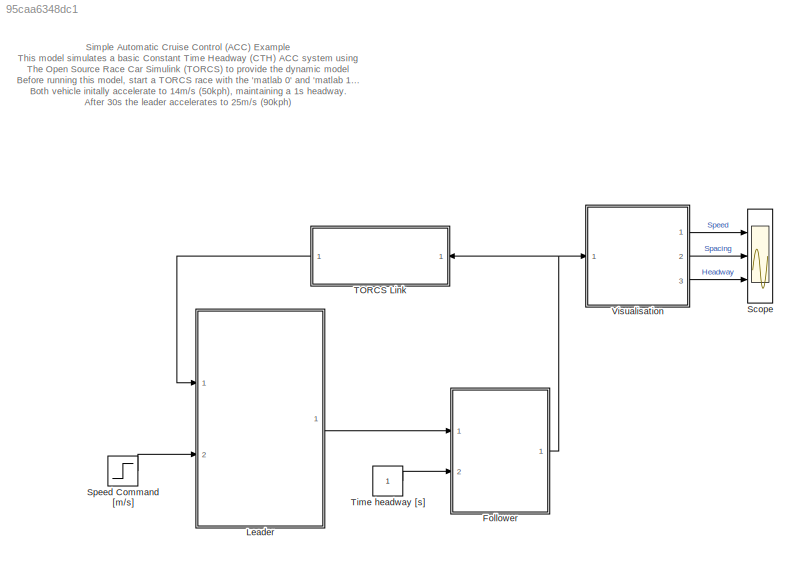
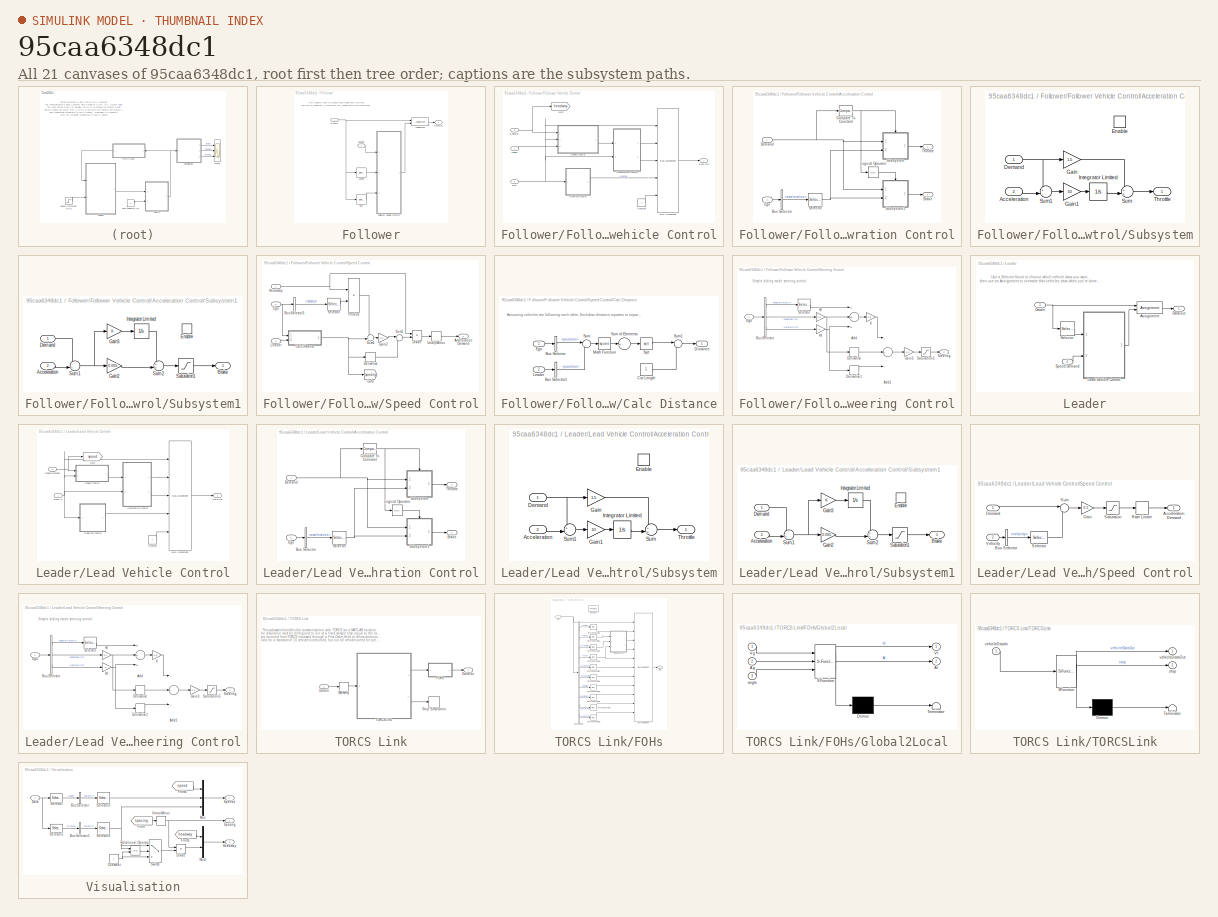
[diagram: thumbnail index - all 21 canvases of the model, root first then tree order]
MODEL slx_95caa6348dc1
KIND model
BLOCK [SubSystem] Follower
  CopyFcn = veh = str2num(get_param(gcb, 'vehicle'));\nveh = veh + 1;\nset_param(gcb,'vehicle',num2str(veh));
  Ports = [2, 1]
  RequestExecContextInheritance = off
BLOCK [Assignment] Follower/Assignment
  DiagnosticForDimensions = Warning
  Indices = 2
  Ports = [2, 1]
BLOCK [Inport] Follower/DataIn
  IconDisplay = Port number
BLOCK [Outport] Follower/DataOut
  IconDisplay = Port number
BLOCK [Selector] Follower/Ego
  Indices = 2
  InputPortWidth = 10
  Ports = [1, 1]
BLOCK [SubSystem] Follower/Follower Vehicle Control
  Ports = [3, 1]
  RequestExecContextInheritance = off
BLOCK [SubSystem] Follower/Follower Vehicle Control/Acceleration Control
  Ports = [2, 2]
  RequestExecContextInheritance = off
BLOCK [Outport] Follower/Follower Vehicle Control/Acceleration Control/Brake
  IconDisplay = Port number
  Port = 2
BLOCK [BusSelector] Follower/Follower Vehicle Control/Acceleration Control/Bus Selector
  OutputSignals = data.acceleration
  Ports = [1, 1]
BLOCK [Reference] Follower/Follower Vehicle Control/Acceleration Control/Compare To Constant  REF=simulink/Logic and Bit
Operations/Compare
To Constant
  OutDataTypeStr = boolean
  Ports = [1, 1]
  SourceBlock = simulink/Logic and Bit\nOperations/Compare\nTo Constant
  SourceType = Compare To Constant
  ZeroCross = on
  const = -0.1
  relop = >=
BLOCK [Inport] Follower/Follower Vehicle Control/Acceleration Control/Demand
  IconDisplay = Port number
BLOCK [Inport] Follower/Follower Vehicle Control/Acceleration Control/Ego
  IconDisplay = Port number
  Port = 2
BLOCK [Logic] Follower/Follower Vehicle Control/Acceleration Control/Logical Operator
  AllPortsSameDT = off
  Operator = NOT
  OutDataTypeStr = boolean
  Ports = [1, 1]
BLOCK [Selector] Follower/Follower Vehicle Control/Acceleration Control/Selector
  InputPortWidth = 3
  Ports = [1, 1]
BLOCK [SubSystem] Follower/Follower Vehicle Control/Acceleration Control/Subsystem
  Ports = [2, 1, 1]
  RequestExecContextInheritance = off
BLOCK [Inport] Follower/Follower Vehicle Control/Acceleration Control/Subsystem/Acceleration
  IconDisplay = Port number
  Port = 2
BLOCK [Inport] Follower/Follower Vehicle Control/Acceleration Control/Subsystem/Demand
  IconDisplay = Port number
BLOCK [EnablePort] Follower/Follower Vehicle Control/Acceleration Control/Subsystem/Enable
  Ports = []
  StatesWhenEnabling = reset
BLOCK [Gain] Follower/Follower Vehicle Control/Acceleration Control/Subsystem/Gain
  Gain = 1.5
  OutDataTypeStr = Inherit: Inherit via internal rule
  ParamDataTypeStr = Inherit: Inherit via internal rule
  SaturateOnIntegerOverflow = off
BLOCK [Gain] Follower/Follower Vehicle Control/Acceleration Control/Subsystem/Gain1
  Gain = 10
  OutDataTypeStr = Inherit: Inherit via internal rule
  ParamDataTypeStr = Inherit: Inherit via internal rule
  SaturateOnIntegerOverflow = off
BLOCK [Integrator] Follower/Follower Vehicle Control/Acceleration Control/Subsystem/Integrator Limited
  LimitOutput = on
  LowerSaturationLimit = -1
  Ports = [1, 1]
  UpperSaturationLimit = 1
BLOCK [Sum] Follower/Follower Vehicle Control/Acceleration Control/Subsystem/Sum
  IconShape = round
  InputSameDT = off
  Inputs = ++|
  OutDataTypeStr = Inherit: Inherit via internal rule
  Ports = [2, 1]
  SaturateOnIntegerOverflow = off
BLOCK [Sum] Follower/Follower Vehicle Control/Acceleration Control/Subsystem/Sum1
  IconShape = round
  InputSameDT = off
  Inputs = +-|
  OutDataTypeStr = Inherit: Inherit via internal rule
  Ports = [2, 1]
  SaturateOnIntegerOverflow = off
BLOCK [Outport] Follower/Follower Vehicle Control/Acceleration Control/Subsystem/Throttle
  IconDisplay = Port number
  InitialOutput = 0
  OutputWhenDisabled = reset
BLOCK [SubSystem] Follower/Follower Vehicle Control/Acceleration Control/Subsystem1
  Ports = [2, 1, 1]
  RequestExecContextInheritance = off
BLOCK [Inport] Follower/Follower Vehicle Control/Acceleration Control/Subsystem1/Acceleration
  IconDisplay = Port number
  Port = 2
BLOCK [Outport] Follower/Follower Vehicle Control/Acceleration Control/Subsystem1/Brake
  IconDisplay = Port number
  InitialOutput = 0
  OutputWhenDisabled = reset
BLOCK [Inport] Follower/Follower Vehicle Control/Acceleration Control/Subsystem1/Demand
  IconDisplay = Port number
BLOCK [EnablePort] Follower/Follower Vehicle Control/Acceleration Control/Subsystem1/Enable
  Ports = []
  StatesWhenEnabling = reset
BLOCK [Gain] Follower/Follower Vehicle Control/Acceleration Control/Subsystem1/Gain2
  Gain = 0.005
  OutDataTypeStr = Inherit: Inherit via internal rule
  ParamDataTypeStr = Inherit: Inherit via internal rule
  SaturateOnIntegerOverflow = off
BLOCK [Gain] Follower/Follower Vehicle Control/Acceleration Control/Subsystem1/Gain3
  OutDataTypeStr = Inherit: Inherit via internal rule
  ParamDataTypeStr = Inherit: Inherit via internal rule
  SaturateOnIntegerOverflow = off
BLOCK [Integrator] Follower/Follower Vehicle Control/Acceleration Control/Subsystem1/Integrator Limited
  LimitOutput = on
  LowerSaturationLimit = -1
  Ports = [1, 1]
  UpperSaturationLimit = 1
BLOCK [Saturate] Follower/Follower Vehicle Control/Acceleration Control/Subsystem1/Saturation1
  InputPortMap = u0
  LowerLimit = 0
  Ports = [1, 1]
  UpperLimit = 1
BLOCK [Sum] Follower/Follower Vehicle Control/Acceleration Control/Subsystem1/Sum1
  IconShape = round
  InputSameDT = off
  Inputs = -+|
  OutDataTypeStr = Inherit: Inherit via internal rule
  Ports = [2, 1]
  SaturateOnIntegerOverflow = off
BLOCK [Sum] Follower/Follower Vehicle Control/Acceleration Control/Subsystem1/Sum2
  IconShape = round
  InputSameDT = off
  Inputs = ++|
  OutDataTypeStr = Inherit: Inherit via internal rule
  Ports = [2, 1]
  SaturateOnIntegerOverflow = off
BLOCK [Outport] Follower/Follower Vehicle Control/Acceleration Control/Throttle
  IconDisplay = Port number
BLOCK [BusAssignment] Follower/Follower Vehicle Control/Bus Assignment
  AssignedSignals = control.throttle,control.brake,control.steering,control.gear
  Ports = [5, 1]
BLOCK [Constant] Follower/Follower Vehicle Control/Constant
  OutDataTypeStr = int32
  Value = 4
BLOCK [Outport] Follower/Follower Vehicle Control/Data Out
  IconDisplay = Port number
BLOCK [Inport] Follower/Follower Vehicle Control/Ego
  IconDisplay = Port number
  Port = 3
BLOCK [Goto] Follower/Follower Vehicle Control/Goto
  GotoTag = headway
  TagVisibility = global
BLOCK [Inport] Follower/Follower Vehicle Control/Headway
  IconDisplay = Port number
BLOCK [Inport] Follower/Follower Vehicle Control/Leader
  IconDisplay = Port number
  Port = 2
BLOCK [SubSystem] Follower/Follower Vehicle Control/Speed Control
  Ports = [3, 1]
  RequestExecContextInheritance = off
BLOCK [Outport] Follower/Follower Vehicle Control/Speed Control/Acceleration Demand
  IconDisplay = Port number
BLOCK [BusSelector] Follower/Follower Vehicle Control/Speed Control/Bus Selector3
  OutputSignals = data.velocity
  Ports = [1, 1]
BLOCK [SubSystem] Follower/Follower Vehicle Control/Speed Control/Calc Distance
  Ports = [2, 1]
  RequestExecContextInheritance = off
BLOCK [BusSelector] Follower/Follower Vehicle Control/Speed Control/Calc Distance/Bus Selector
  OutputSignals = data.position
  Ports = [1, 1]
BLOCK [BusSelector] Follower/Follower Vehicle Control/Speed Control/Calc Distance/Bus Selector1
  OutputSignals = data.position
  Ports = [1, 1]
BLOCK [Constant] Follower/Follower Vehicle Control/Speed Control/Calc Distance/Car Length
  Value = 5
BLOCK [Outport] Follower/Follower Vehicle Control/Speed Control/Calc Distance/Distance
  IconDisplay = Port number
BLOCK [Inport] Follower/Follower Vehicle Control/Speed Control/Calc Distance/Ego
  IconDisplay = Port number
BLOCK [Inport] Follower/Follower Vehicle Control/Speed Control/Calc Distance/Leader
  IconDisplay = Port number
  Port = 2
BLOCK [Math] Follower/Follower Vehicle Control/Speed Control/Calc Distance/Math Function
  Operator = square
  Ports = [1, 1]
BLOCK [Sqrt] Follower/Follower Vehicle Control/Speed Control/Calc Distance/Sqrt
BLOCK [Sum] Follower/Follower Vehicle Control/Speed Control/Calc Distance/Sum
  IconShape = round
  InputSameDT = off
  Inputs = |+-
  OutDataTypeStr = Inherit: Inherit via internal rule
  Ports = [2, 1]
  SaturateOnIntegerOverflow = off
BLOCK [Sum] Follower/Follower Vehicle Control/Speed Control/Calc Distance/Sum of Elements
  InputSameDT = off
  Inputs = +
  OutDataTypeStr = Inherit: Inherit via internal rule
  Ports = [1, 1]
  SaturateOnIntegerOverflow = off
BLOCK [Sum] Follower/Follower Vehicle Control/Speed Control/Calc Distance/Sum1
  IconShape = round
  InputSameDT = off
  Inputs = |-+
  OutDataTypeStr = Inherit: Inherit via internal rule
  Ports = [2, 1]
  SaturateOnIntegerOverflow = off
BLOCK [Derivative] Follower/Follower Vehicle Control/Speed Control/Derivative
BLOCK [Product] Follower/Follower Vehicle Control/Speed Control/Divide
  InputSameDT = off
  Inputs = /*
  OutDataTypeStr = Inherit: Inherit via internal rule
  Ports = [2, 1]
  RndMeth = Floor
  SaturateOnIntegerOverflow = off
BLOCK [Inport] Follower/Follower Vehicle Control/Speed Control/Ego
  IconDisplay = Port number
  Port = 2
BLOCK [Gain] Follower/Follower Vehicle Control/Speed Control/Gain2
  Gain = 0.1
  OutDataTypeStr = Inherit: Inherit via internal rule
  ParamDataTypeStr = Inherit: Inherit via internal rule
  SaturateOnIntegerOverflow = off
BLOCK [Goto] Follower/Follower Vehicle Control/Speed Control/Goto
  GotoTag = spacing
  TagVisibility = global
BLOCK [Inport] Follower/Follower Vehicle Control/Speed Control/Headway
  IconDisplay = Port number
BLOCK [Inport] Follower/Follower Vehicle Control/Speed Control/Leader
  IconDisplay = Port number
  Port = 3
BLOCK [Product] Follower/Follower Vehicle Control/Speed Control/Product
  InputSameDT = off
  OutDataTypeStr = Inherit: Inherit via internal rule
  Ports = [2, 1]
  RndMeth = Floor
  SaturateOnIntegerOverflow = off
BLOCK [Selector] Follower/Follower Vehicle Control/Speed Control/Selector
  InputPortWidth = 3
  Ports = [1, 1]
BLOCK [Sum] Follower/Follower Vehicle Control/Speed Control/Sum1
  IconShape = round
  InputSameDT = off
  Inputs = |++
  OutDataTypeStr = Inherit: Inherit via internal rule
  Ports = [2, 1]
  SaturateOnIntegerOverflow = off
BLOCK [Sum] Follower/Follower Vehicle Control/Speed Control/Sum2
  IconShape = round
  InputSameDT = off
  Inputs = ++|
  OutDataTypeStr = Inherit: Inherit via internal rule
  Ports = [2, 1]
  SaturateOnIntegerOverflow = off
BLOCK [UnaryMinus] Follower/Follower Vehicle Control/Speed Control/Unary Minus
BLOCK [SubSystem] Follower/Follower Vehicle Control/Steering Control
  Ports = [1, 1]
  RequestExecContextInheritance = off
BLOCK [Sum] Follower/Follower Vehicle Control/Steering Control/Add
  InputSameDT = off
  Inputs = +++
  OutDataTypeStr = Inherit: Inherit via internal rule
  Ports = [3, 1]
  SaturateOnIntegerOverflow = off
BLOCK [Sum] Follower/Follower Vehicle Control/Steering Control/Add1
  InputSameDT = off
  Inputs = ---
  OutDataTypeStr = Inherit: Inherit via internal rule
  Ports = [3, 1]
  SaturateOnIntegerOverflow = off
BLOCK [BusSelector] Follower/Follower Vehicle Control/Steering Control/Bus Selector
  OutputSignals = data.angularVelocity,data.headingError,data.lateralError
  Ports = [1, 3]
BLOCK [Derivative] Follower/Follower Vehicle Control/Steering Control/Derivative
BLOCK [Derivative] Follower/Follower Vehicle Control/Steering Control/Derivative1
BLOCK [Inport] Follower/Follower Vehicle Control/Steering Control/Ego
  IconDisplay = Port number
BLOCK [Gain] Follower/Follower Vehicle Control/Steering Control/Gain3
  Gain = 0.5
  OutDataTypeStr = Inherit: Inherit via internal rule
  ParamDataTypeStr = Inherit: Inherit via internal rule
  SaturateOnIntegerOverflow = off
BLOCK [Gain] Follower/Follower Vehicle Control/Steering Control/K
  Gain = 0.5
  OutDataTypeStr = Inherit: Inherit via internal rule
  ParamDataTypeStr = Inherit: Inherit via internal rule
  SaturateOnIntegerOverflow = off
BLOCK [Saturate] Follower/Follower Vehicle Control/Steering Control/Saturation5
  InputPortMap = u0
  Ports = [1, 1]
BLOCK [Selector] Follower/Follower Vehicle Control/Steering Control/Selector
  Indices = 3
  InputPortWidth = 3
  Ports = [1, 1]
BLOCK [Outport] Follower/Follower Vehicle Control/Steering Control/Steering
  IconDisplay = Port number
BLOCK [Gain] Follower/Follower Vehicle Control/Steering Control/kd
  OutDataTypeStr = Inherit: Inherit via internal rule
  ParamDataTypeStr = Inherit: Inherit via internal rule
  SaturateOnIntegerOverflow = off
BLOCK [Gain] Follower/Follower Vehicle Control/Steering Control/kp
  Gain = 0.1
  OutDataTypeStr = Inherit: Inherit via internal rule
  ParamDataTypeStr = Inherit: Inherit via internal rule
  SaturateOnIntegerOverflow = off
BLOCK [Selector] Follower/Leader
  InputPortWidth = 10
  Ports = [1, 1]
BLOCK [Inport] Follower/Spacing
  IconDisplay = Port number
  Port = 2
BLOCK [SubSystem] Leader
  Ports = [2, 1]
  RequestExecContextInheritance = off
BLOCK [Assignment] Leader/Assignment
  DiagnosticForDimensions = Warning
  Ports = [2, 1]
BLOCK [Inport] Leader/DataIn
  IconDisplay = Port number
BLOCK [Outport] Leader/DataOut
  IconDisplay = Port number
BLOCK [SubSystem] Leader/Lead Vehicle Control
  Ports = [2, 1]
  RequestExecContextInheritance = off
BLOCK [SubSystem] Leader/Lead Vehicle Control/Acceleration Control
  Ports = [2, 2]
  RequestExecContextInheritance = off
BLOCK [Outport] Leader/Lead Vehicle Control/Acceleration Control/Brake
  IconDisplay = Port number
  Port = 2
BLOCK [BusSelector] Leader/Lead Vehicle Control/Acceleration Control/Bus Selector
  OutputSignals = data.acceleration
  Ports = [1, 1]
BLOCK [Reference] Leader/Lead Vehicle Control/Acceleration Control/Compare To Constant  REF=simulink/Logic and Bit
Operations/Compare
To Constant
  OutDataTypeStr = boolean
  Ports = [1, 1]
  SourceBlock = simulink/Logic and Bit\nOperations/Compare\nTo Constant
  SourceType = Compare To Constant
  ZeroCross = on
  const = -0.1
  relop = >=
BLOCK [Inport] Leader/Lead Vehicle Control/Acceleration Control/Demand
  IconDisplay = Port number
BLOCK [Inport] Leader/Lead Vehicle Control/Acceleration Control/Ego
  IconDisplay = Port number
  Port = 2
BLOCK [Logic] Leader/Lead Vehicle Control/Acceleration Control/Logical Operator
  AllPortsSameDT = off
  Operator = NOT
  OutDataTypeStr = boolean
  Ports = [1, 1]
BLOCK [Selector] Leader/Lead Vehicle Control/Acceleration Control/Selector
  InputPortWidth = 3
  Ports = [1, 1]
BLOCK [SubSystem] Leader/Lead Vehicle Control/Acceleration Control/Subsystem
  Ports = [2, 1, 1]
  RequestExecContextInheritance = off
BLOCK [Inport] Leader/Lead Vehicle Control/Acceleration Control/Subsystem/Acceleration
  IconDisplay = Port number
  Port = 2
BLOCK [Inport] Leader/Lead Vehicle Control/Acceleration Control/Subsystem/Demand
  IconDisplay = Port number
BLOCK [EnablePort] Leader/Lead Vehicle Control/Acceleration Control/Subsystem/Enable
  Ports = []
  StatesWhenEnabling = reset
BLOCK [Gain] Leader/Lead Vehicle Control/Acceleration Control/Subsystem/Gain
  Gain = 1.5
  OutDataTypeStr = Inherit: Inherit via internal rule
  ParamDataTypeStr = Inherit: Inherit via internal rule
  SaturateOnIntegerOverflow = off
BLOCK [Gain] Leader/Lead Vehicle Control/Acceleration Control/Subsystem/Gain1
  Gain = 10
  OutDataTypeStr = Inherit: Inherit via internal rule
  ParamDataTypeStr = Inherit: Inherit via internal rule
  SaturateOnIntegerOverflow = off
BLOCK [Integrator] Leader/Lead Vehicle Control/Acceleration Control/Subsystem/Integrator Limited
  LimitOutput = on
  LowerSaturationLimit = -1
  Ports = [1, 1]
  UpperSaturationLimit = 1
BLOCK [Sum] Leader/Lead Vehicle Control/Acceleration Control/Subsystem/Sum
  IconShape = round
  InputSameDT = off
  Inputs = ++|
  OutDataTypeStr = Inherit: Inherit via internal rule
  Ports = [2, 1]
  SaturateOnIntegerOverflow = off
BLOCK [Sum] Leader/Lead Vehicle Control/Acceleration Control/Subsystem/Sum1
  IconShape = round
  InputSameDT = off
  Inputs = +-|
  OutDataTypeStr = Inherit: Inherit via internal rule
  Ports = [2, 1]
  SaturateOnIntegerOverflow = off
BLOCK [Outport] Leader/Lead Vehicle Control/Acceleration Control/Subsystem/Throttle
  IconDisplay = Port number
  InitialOutput = 0
  OutputWhenDisabled = reset
BLOCK [SubSystem] Leader/Lead Vehicle Control/Acceleration Control/Subsystem1
  Ports = [2, 1, 1]
  RequestExecContextInheritance = off
BLOCK [Inport] Leader/Lead Vehicle Control/Acceleration Control/Subsystem1/Acceleration
  IconDisplay = Port number
  Port = 2
BLOCK [Outport] Leader/Lead Vehicle Control/Acceleration Control/Subsystem1/Brake
  IconDisplay = Port number
  InitialOutput = 0
  OutputWhenDisabled = reset
BLOCK [Inport] Leader/Lead Vehicle Control/Acceleration Control/Subsystem1/Demand
  IconDisplay = Port number
BLOCK [EnablePort] Leader/Lead Vehicle Control/Acceleration Control/Subsystem1/Enable
  Ports = []
  StatesWhenEnabling = reset
BLOCK [Gain] Leader/Lead Vehicle Control/Acceleration Control/Subsystem1/Gain2
  Gain = 0.005
  OutDataTypeStr = Inherit: Inherit via internal rule
  ParamDataTypeStr = Inherit: Inherit via internal rule
  SaturateOnIntegerOverflow = off
BLOCK [Gain] Leader/Lead Vehicle Control/Acceleration Control/Subsystem1/Gain3
  OutDataTypeStr = Inherit: Inherit via internal rule
  ParamDataTypeStr = Inherit: Inherit via internal rule
  SaturateOnIntegerOverflow = off
BLOCK [Integrator] Leader/Lead Vehicle Control/Acceleration Control/Subsystem1/Integrator Limited
  LimitOutput = on
  LowerSaturationLimit = -1
  Ports = [1, 1]
  UpperSaturationLimit = 1
BLOCK [Saturate] Leader/Lead Vehicle Control/Acceleration Control/Subsystem1/Saturation1
  InputPortMap = u0
  LowerLimit = 0
  Ports = [1, 1]
  UpperLimit = 1
BLOCK [Sum] Leader/Lead Vehicle Control/Acceleration Control/Subsystem1/Sum1
  IconShape = round
  InputSameDT = off
  Inputs = -+|
  OutDataTypeStr = Inherit: Inherit via internal rule
  Ports = [2, 1]
  SaturateOnIntegerOverflow = off
BLOCK [Sum] Leader/Lead Vehicle Control/Acceleration Control/Subsystem1/Sum2
  IconShape = round
  InputSameDT = off
  Inputs = ++|
  OutDataTypeStr = Inherit: Inherit via internal rule
  Ports = [2, 1]
  SaturateOnIntegerOverflow = off
BLOCK [Outport] Leader/Lead Vehicle Control/Acceleration Control/Throttle
  IconDisplay = Port number
BLOCK [BusAssignment] Leader/Lead Vehicle Control/Bus Assignment
  AssignedSignals = control.throttle,control.brake,control.steering,control.gear
  Ports = [5, 1]
BLOCK [Constant] Leader/Lead Vehicle Control/Constant
  OutDataTypeStr = int32
  Value = 4
BLOCK [Inport] Leader/Lead Vehicle Control/Data In
  IconDisplay = Port number
BLOCK [Outport] Leader/Lead Vehicle Control/Data Out
  IconDisplay = Port number
BLOCK [Goto] Leader/Lead Vehicle Control/Goto
  GotoTag = speed
  TagVisibility = global
BLOCK [SubSystem] Leader/Lead Vehicle Control/Speed Control
  Ports = [2, 1]
  RequestExecContextInheritance = off
BLOCK [Outport] Leader/Lead Vehicle Control/Speed Control/Acceleration Demand
  IconDisplay = Port number
BLOCK [BusSelector] Leader/Lead Vehicle Control/Speed Control/Bus Selector
  OutputSignals = data.velocity
  Ports = [1, 1]
BLOCK [Inport] Leader/Lead Vehicle Control/Speed Control/Demand
  IconDisplay = Port number
BLOCK [Gain] Leader/Lead Vehicle Control/Speed Control/Gain
  Gain = 0.5
  OutDataTypeStr = Inherit: Inherit via internal rule
  ParamDataTypeStr = Inherit: Inherit via internal rule
  SaturateOnIntegerOverflow = off
BLOCK [RateLimiter] Leader/Lead Vehicle Control/Speed Control/Rate Limiter
  FallingSlewLimit = -inf
  RisingSlewLimit = inf
  SampleTimeMode = inherited
BLOCK [Saturate] Leader/Lead Vehicle Control/Speed Control/Saturation
  InputPortMap = u0
  LowerLimit = -4
  Ports = [1, 1]
  UpperLimit = 2
BLOCK [Selector] Leader/Lead Vehicle Control/Speed Control/Selector
  InputPortWidth = 3
  Ports = [1, 1]
BLOCK [Sum] Leader/Lead Vehicle Control/Speed Control/Sum
  IconShape = round
  InputSameDT = off
  Inputs = |+-
  OutDataTypeStr = Inherit: Inherit via internal rule
  Ports = [2, 1]
  SaturateOnIntegerOverflow = off
BLOCK [Inport] Leader/Lead Vehicle Control/Speed Control/Velocity
  IconDisplay = Port number
  Port = 2
BLOCK [Inport] Leader/Lead Vehicle Control/Speed Demand
  IconDisplay = Port number
  Port = 2
BLOCK [SubSystem] Leader/Lead Vehicle Control/Steering Control
  Ports = [1, 1]
  RequestExecContextInheritance = off
BLOCK [Sum] Leader/Lead Vehicle Control/Steering Control/Add
  InputSameDT = off
  Inputs = +++
  OutDataTypeStr = Inherit: Inherit via internal rule
  Ports = [3, 1]
  SaturateOnIntegerOverflow = off
BLOCK [Sum] Leader/Lead Vehicle Control/Steering Control/Add1
  InputSameDT = off
  Inputs = ---
  OutDataTypeStr = Inherit: Inherit via internal rule
  Ports = [3, 1]
  SaturateOnIntegerOverflow = off
BLOCK [BusSelector] Leader/Lead Vehicle Control/Steering Control/Bus Selector
  OutputSignals = data.angularVelocity,data.headingError,data.lateralError
  Ports = [1, 3]
BLOCK [Derivative] Leader/Lead Vehicle Control/Steering Control/Derivative
BLOCK [Derivative] Leader/Lead Vehicle Control/Steering Control/Derivative1
BLOCK [Inport] Leader/Lead Vehicle Control/Steering Control/Ego
  IconDisplay = Port number
BLOCK [Gain] Leader/Lead Vehicle Control/Steering Control/Gain3
  Gain = 0.5
  OutDataTypeStr = Inherit: Inherit via internal rule
  ParamDataTypeStr = Inherit: Inherit via internal rule
  SaturateOnIntegerOverflow = off
BLOCK [Gain] Leader/Lead Vehicle Control/Steering Control/K
  Gain = 0.5
  OutDataTypeStr = Inherit: Inherit via internal rule
  ParamDataTypeStr = Inherit: Inherit via internal rule
  SaturateOnIntegerOverflow = off
BLOCK [Saturate] Leader/Lead Vehicle Control/Steering Control/Saturation5
  InputPortMap = u0
  Ports = [1, 1]
BLOCK [Selector] Leader/Lead Vehicle Control/Steering Control/Selector
  Indices = 3
  InputPortWidth = 3
  Ports = [1, 1]
BLOCK [Outport] Leader/Lead Vehicle Control/Steering Control/Steering
  IconDisplay = Port number
BLOCK [Gain] Leader/Lead Vehicle Control/Steering Control/kd
  OutDataTypeStr = Inherit: Inherit via internal rule
  ParamDataTypeStr = Inherit: Inherit via internal rule
  SaturateOnIntegerOverflow = off
BLOCK [Gain] Leader/Lead Vehicle Control/Steering Control/kp
  Gain = 0.1
  OutDataTypeStr = Inherit: Inherit via internal rule
  ParamDataTypeStr = Inherit: Inherit via internal rule
  SaturateOnIntegerOverflow = off
BLOCK [Selector] Leader/Selector
  InputPortWidth = 10
  Ports = [1, 1]
BLOCK [Inport] Leader/Speed Demand
  IconDisplay = Port number
  Port = 2
BLOCK [Scope] Scope
  Floating = off
  LimitDataPoints = off
  NumInputPorts = 3
  Ports = [3]
  SaveName = ScopeData1
  ShowLegends = off
  TimeRange = 90
  YMax = 30~40~1.634169884169884
  YMin = -5~5~1
  ZoomMode = yonly
BLOCK [Step] Speed Command [m//s]
  After = 25
  Before = 14
  SampleTime = 0
  Time = 30
BLOCK [SubSystem] TORCS Link
  InitFcn = load VehicleBusses.mat;\nsrc = 'TORCSLink.c';\ninit = 'initTORCSLink();';\nterm = 'terminateTORCSLink();';\nsimSrc = get_param(gcs,'SimUserSources');\nsimInit = get_param(gcs,'SimCustomInitializer');\nsimTerm = get_param(gcs,'SimCustomTerminator');\n\nif isempty(strfind(simSrc,src))\n  fprintf('Adding %s to Custom Sources\n', src);\n  set_param(gcs,'SimUserSources', [simSrc 10 src]);\nend\n\nif isempty(strfind...<+653ch>
  LoadFcn = load VehicleBusses.mat;\nsrc = 'TORCSLink.c';\ninit = 'initTORCSLink();';\nterm = 'terminateTORCSLink();';\nsimSrc = get_param(gcs,'SimUserSources');\nsimInit = get_param(gcs,'SimCustomInitializer');\nsimTerm = get_param(gcs,'SimCustomTerminator');\n\nif isempty(strfind(simSrc,src))\n  fprintf('Adding %s to Custom Sources\n', src);\n  set_param(gcs,'SimUserSources', [simSrc 10 src]);\nend\n\nif isempty(strfind...<+653ch>
  Ports = [1, 1]
  RequestExecContextInheritance = off
BLOCK [Inport] TORCS Link/DataIn
  IconDisplay = Port number
BLOCK [Outport] TORCS Link/DataOut
  IconDisplay = Port number
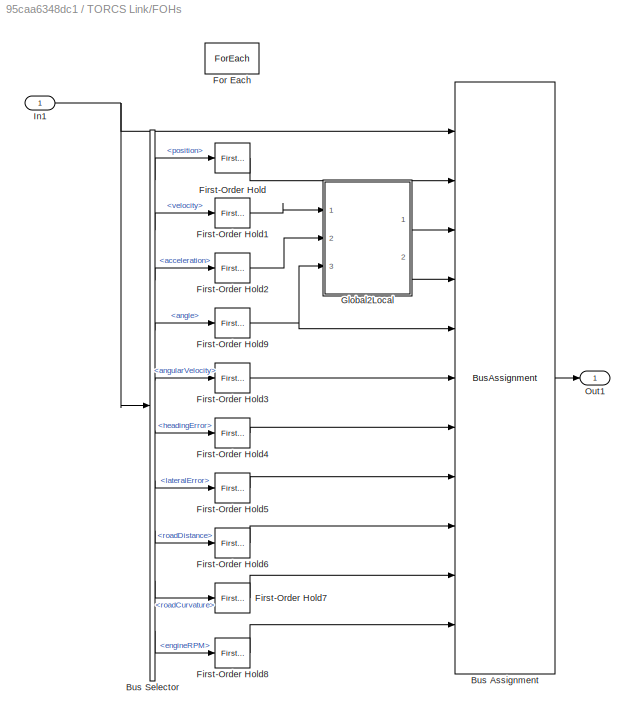
BLOCK [SubSystem] TORCS Link/FOHs
  Ports = [1, 1]
  RequestExecContextInheritance = off
  TreatAsAtomicUnit = on
BLOCK [BusAssignment] TORCS Link/FOHs/Bus Assignment
  AssignedSignals = data.position,data.velocity,data.acceleration,data.angle,data.angularVelocity,data.headingError,data.lateralError,data.roadDistance,data.roadCurvature,data.engineRPM
  Ports = [11, 1]
BLOCK [BusSelector] TORCS Link/FOHs/Bus Selector
  OutputSignals = data.position,data.velocity,data.acceleration,data.angle,data.angularVelocity,data.headingError,data.lateralError,data.roadDistance,data.roadCurvature,data.engineRPM
  Ports = [1, 10]
BLOCK [Reference] TORCS Link/FOHs/First-Order Hold  REF=simulink/Discrete/First-Order
Hold
  DisableCoverage = on
  Ports = [1, 1]
  SourceBlock = simulink/Discrete/First-Order\nHold
  SourceType = First-Order Hold
  Ts = 0.02
BLOCK [Reference] TORCS Link/FOHs/First-Order Hold1  REF=simulink/Discrete/First-Order
Hold
  DisableCoverage = on
  Ports = [1, 1]
  SourceBlock = simulink/Discrete/First-Order\nHold
  SourceType = First-Order Hold
  Ts = 0.02
BLOCK [Reference] TORCS Link/FOHs/First-Order Hold2  REF=simulink/Discrete/First-Order
Hold
  DisableCoverage = on
  Ports = [1, 1]
  SourceBlock = simulink/Discrete/First-Order\nHold
  SourceType = First-Order Hold
  Ts = 0.02
BLOCK [Reference] TORCS Link/FOHs/First-Order Hold3  REF=simulink/Discrete/First-Order
Hold
  DisableCoverage = on
  Ports = [1, 1]
  SourceBlock = simulink/Discrete/First-Order\nHold
  SourceType = First-Order Hold
  Ts = 0.02
BLOCK [Reference] TORCS Link/FOHs/First-Order Hold4  REF=simulink/Discrete/First-Order
Hold
  DisableCoverage = on
  Ports = [1, 1]
  SourceBlock = simulink/Discrete/First-Order\nHold
  SourceType = First-Order Hold
  Ts = 0.02
BLOCK [Reference] TORCS Link/FOHs/First-Order Hold5  REF=simulink/Discrete/First-Order
Hold
  DisableCoverage = on
  Ports = [1, 1]
  SourceBlock = simulink/Discrete/First-Order\nHold
  SourceType = First-Order Hold
  Ts = 0.02
BLOCK [Reference] TORCS Link/FOHs/First-Order Hold6  REF=simulink/Discrete/First-Order
Hold
  DisableCoverage = on
  Ports = [1, 1]
  SourceBlock = simulink/Discrete/First-Order\nHold
  SourceType = First-Order Hold
  Ts = 0.02
BLOCK [Reference] TORCS Link/FOHs/First-Order Hold7  REF=simulink/Discrete/First-Order
Hold
  DisableCoverage = on
  Ports = [1, 1]
  SourceBlock = simulink/Discrete/First-Order\nHold
  SourceType = First-Order Hold
  Ts = 0.02
BLOCK [Reference] TORCS Link/FOHs/First-Order Hold8  REF=simulink/Discrete/First-Order
Hold
  DisableCoverage = on
  Ports = [1, 1]
  SourceBlock = simulink/Discrete/First-Order\nHold
  SourceType = First-Order Hold
  Ts = 0.02
BLOCK [Reference] TORCS Link/FOHs/First-Order Hold9  REF=simulink/Discrete/First-Order
Hold
  DisableCoverage = on
  Ports = [1, 1]
  SourceBlock = simulink/Discrete/First-Order\nHold
  SourceType = First-Order Hold
  Ts = 0.02
BLOCK [ForEach] TORCS Link/FOHs/For Each
  DisableCoverage = on
  IndexMode = One-based
  Ports = []
BLOCK [SubSystem] TORCS Link/FOHs/Global2Local
  ErrorFcn = Stateflow.Translate.translate
  PermitHierarchicalResolution = ExplicitOnly
  Ports = [3, 2]
  RequestExecContextInheritance = off
  SFBlockType = MATLAB Function
  TreatAsAtomicUnit = on
BLOCK [Demux] TORCS Link/FOHs/Global2Local/ Demux 
  Outputs = 1
  Ports = [1, 1]
BLOCK [S-Function] TORCS Link/FOHs/Global2Local/ SFunction 
  EnableBusSupport = on
  FunctionName = sf_sfun
  PortCounts = [3 3]
  Ports = [3, 3]
  Tag = Stateflow S-Function ACC_Example 2
BLOCK [Terminator] TORCS Link/FOHs/Global2Local/ Terminator 
BLOCK [Inport] TORCS Link/FOHs/Global2Local/Ag
  IconDisplay = Port number
  Port = 2
BLOCK [Outport] TORCS Link/FOHs/Global2Local/Al
  IconDisplay = Port number
  Port = 2
BLOCK [Inport] TORCS Link/FOHs/Global2Local/Vg
  IconDisplay = Port number
BLOCK [Outport] TORCS Link/FOHs/Global2Local/Vl
  IconDisplay = Port number
BLOCK [Inport] TORCS Link/FOHs/Global2Local/angle
  IconDisplay = Port number
  Port = 3
BLOCK [Inport] TORCS Link/FOHs/In1
  IconDisplay = Port number
  Partition = on
  PartitionDimension = 1
  PartitionWidth = 1
BLOCK [Outport] TORCS Link/FOHs/Out1
  ConcatenationDimension = 1
  IconDisplay = Port number
BLOCK [Memory] TORCS Link/Memory
BLOCK [Stop] TORCS Link/Stop Simulation
BLOCK [SubSystem] TORCS Link/TORCSLink
  ErrorFcn = Stateflow.Translate.translate
  PermitHierarchicalResolution = ExplicitOnly
  Ports = [1, 2]
  RequestExecContextInheritance = off
  SFBlockType = MATLAB Function
  TreatAsAtomicUnit = on
BLOCK [Demux] TORCS Link/TORCSLink/ Demux 
  Outputs = 1
  Ports = [1, 1]
BLOCK [S-Function] TORCS Link/TORCSLink/ SFunction 
  EnableBusSupport = on
  FunctionName = sf_sfun
  PortCounts = [1 3]
  Ports = [1, 3]
  Tag = Stateflow S-Function ACC_Example 1
BLOCK [Terminator] TORCS Link/TORCSLink/ Terminator 
BLOCK [Outport] TORCS Link/TORCSLink/stop
  IconDisplay = Port number
  Port = 2
BLOCK [Inport] TORCS Link/TORCSLink/vehicleDataIn
  IconDisplay = Port number
BLOCK [Outport] TORCS Link/TORCSLink/vehicleDataOut
  IconDisplay = Port number
BLOCK [Constant] Time headway [s]
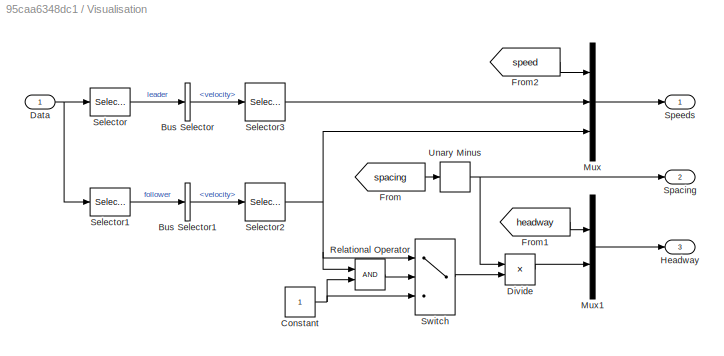
BLOCK [SubSystem] Visualisation
  Ports = [1, 3]
  RequestExecContextInheritance = off
BLOCK [BusSelector] Visualisation/Bus Selector
  OutputSignals = data.velocity
  Ports = [1, 1]
BLOCK [BusSelector] Visualisation/Bus Selector1
  OutputSignals = data.velocity
  Ports = [1, 1]
BLOCK [Constant] Visualisation/Constant
BLOCK [Inport] Visualisation/Data
  IconDisplay = Port number
BLOCK [Product] Visualisation/Divide
  InputSameDT = off
  Inputs = */
  OutDataTypeStr = Inherit: Inherit via internal rule
  Ports = [2, 1]
  RndMeth = Floor
  SaturateOnIntegerOverflow = off
BLOCK [From] Visualisation/From
  GotoTag = spacing
  TagVisibility = global
BLOCK [From] Visualisation/From1
  GotoTag = headway
  TagVisibility = global
BLOCK [From] Visualisation/From2
  GotoTag = speed
  TagVisibility = global
BLOCK [Outport] Visualisation/Headway
  IconDisplay = Port number
  Port = 3
BLOCK [Mux] Visualisation/Mux
  DisplayOption = bar
  Inputs = 3
  Ports = [3, 1]
BLOCK [Mux] Visualisation/Mux1
  DisplayOption = bar
  Inputs = 2
  Ports = [2, 1]
BLOCK [RelationalOperator] Visualisation/Relational Operator
  InputSameDT = off
  OutDataTypeStr = boolean
  Ports = [2, 1]
BLOCK [Selector] Visualisation/Selector
  InputPortWidth = 10
  Ports = [1, 1]
BLOCK [Selector] Visualisation/Selector1
  Indices = 2
  InputPortWidth = 10
  Ports = [1, 1]
BLOCK [Selector] Visualisation/Selector2
  InputPortWidth = 3
  Ports = [1, 1]
BLOCK [Selector] Visualisation/Selector3
  InputPortWidth = 3
  Ports = [1, 1]
BLOCK [Outport] Visualisation/Spacing
  IconDisplay = Port number
  Port = 2
BLOCK [Outport] Visualisation/Speeds
  IconDisplay = Port number
BLOCK [Switch] Visualisation/Switch
  Criteria = u2 > Threshold
  InputSameDT = off
  SaturateOnIntegerOverflow = off
BLOCK [UnaryMinus] Visualisation/Unary Minus
ANNOTATION (root): Simple Automatic Cruise Control (ACC) Example This model simulates a basic Constant Time Headway (CTH) ACC system using The Open Source Race Car Simulink (TORCS) to provide the dynamic model Before running this model, start a TORCS race with the 'matlab 0' and 'matlab 1' in Both vehicle initally accelerate to 14m/s (50kph), maintaining a 1s headway. After 30s the leader accelerates to 25m/s (90kph...<+72ch>
ANNOTATION Follower: Use a Selector block to choose which vehicle data you want, then use an Assignment to overwrite that vehicles data when you're done...
ANNOTATION Follower/Follower Vehicle Control/Speed Control/Calc Distance: Assuming vehicles are following each other, Euclidian distance equates to separation
ANNOTATION Follower/Follower Vehicle Control/Steering Control: Simple sliding mode steering control
ANNOTATION Leader: Use a Selector block to choose which vehicle data you want, then use an Assignment to overwrite that vehicles data when you're done...
ANNOTATION Leader/Lead Vehicle Control/Steering Control: Simple sliding mode steering control
ANNOTATION TORCS Link: This subsystem handles the communicatrion with TORCS via a MATLAB function. The simulation must be configured to run at a fixed sample time equal to the rate at which TORCS updates its robots (0.02s by default) Data returned from TORCS is passed through a First-Order-Hold to allow continuous design in Simulink Data for a maximum of 10 vehicles is returned, but not all vehicles need be present in t...<+7ch>
LINE Follower/Assignment:1 -> Follower/DataOut:1
NET Follower/DataIn:1 -> Follower/Assignment:1, Follower/Ego:1, Follower/Leader:1
LINE Follower/Ego:1 -> Follower/Follower Vehicle Control:3
LINE Follower/Follower Vehicle Control/Acceleration Control/Bus Selector:1 -> Follower/Follower Vehicle Control/Acceleration Control/Selector:1
NET Follower/Follower Vehicle Control/Acceleration Control/Compare To Constant:1 -> Follower/Follower Vehicle Control/Acceleration Control/Logical Operator:1, Follower/Follower Vehicle Control/Acceleration Control/Subsystem:enable
NET Follower/Follower Vehicle Control/Acceleration Control/Demand:1 -> Follower/Follower Vehicle Control/Acceleration Control/Compare To Constant:1, Follower/Follower Vehicle Control/Acceleration Control/Subsystem1:1, Follower/Follower Vehicle Control/Acceleration Control/Subsystem:1
LINE Follower/Follower Vehicle Control/Acceleration Control/Ego:1 -> Follower/Follower Vehicle Control/Acceleration Control/Bus Selector:1
LINE Follower/Follower Vehicle Control/Acceleration Control/Logical Operator:1 -> Follower/Follower Vehicle Control/Acceleration Control/Subsystem1:enable
NET Follower/Follower Vehicle Control/Acceleration Control/Selector:1 -> Follower/Follower Vehicle Control/Acceleration Control/Subsystem1:2, Follower/Follower Vehicle Control/Acceleration Control/Subsystem:2
LINE Follower/Follower Vehicle Control/Acceleration Control/Subsystem/Acceleration:1 -> Follower/Follower Vehicle Control/Acceleration Control/Subsystem/Sum1:2
NET Follower/Follower Vehicle Control/Acceleration Control/Subsystem/Demand:1 -> Follower/Follower Vehicle Control/Acceleration Control/Subsystem/Gain:1, Follower/Follower Vehicle Control/Acceleration Control/Subsystem/Sum1:1
LINE Follower/Follower Vehicle Control/Acceleration Control/Subsystem/Gain1:1 -> Follower/Follower Vehicle Control/Acceleration Control/Subsystem/Integrator Limited:1
LINE Follower/Follower Vehicle Control/Acceleration Control/Subsystem/Gain:1 -> Follower/Follower Vehicle Control/Acceleration Control/Subsystem/Sum:1
LINE Follower/Follower Vehicle Control/Acceleration Control/Subsystem/Integrator Limited:1 -> Follower/Follower Vehicle Control/Acceleration Control/Subsystem/Sum:2
LINE Follower/Follower Vehicle Control/Acceleration Control/Subsystem/Sum1:1 -> Follower/Follower Vehicle Control/Acceleration Control/Subsystem/Gain1:1
LINE Follower/Follower Vehicle Control/Acceleration Control/Subsystem/Sum:1 -> Follower/Follower Vehicle Control/Acceleration Control/Subsystem/Throttle:1
LINE Follower/Follower Vehicle Control/Acceleration Control/Subsystem1/Acceleration:1 -> Follower/Follower Vehicle Control/Acceleration Control/Subsystem1/Sum1:2
LINE Follower/Follower Vehicle Control/Acceleration Control/Subsystem1/Demand:1 -> Follower/Follower Vehicle Control/Acceleration Control/Subsystem1/Sum1:1
LINE Follower/Follower Vehicle Control/Acceleration Control/Subsystem1/Gain2:1 -> Follower/Follower Vehicle Control/Acceleration Control/Subsystem1/Sum2:2
LINE Follower/Follower Vehicle Control/Acceleration Control/Subsystem1/Gain3:1 -> Follower/Follower Vehicle Control/Acceleration Control/Subsystem1/Integrator Limited:1
LINE Follower/Follower Vehicle Control/Acceleration Control/Subsystem1/Integrator Limited:1 -> Follower/Follower Vehicle Control/Acceleration Control/Subsystem1/Sum2:1
LINE Follower/Follower Vehicle Control/Acceleration Control/Subsystem1/Saturation1:1 -> Follower/Follower Vehicle Control/Acceleration Control/Subsystem1/Brake:1
NET Follower/Follower Vehicle Control/Acceleration Control/Subsystem1/Sum1:1 -> Follower/Follower Vehicle Control/Acceleration Control/Subsystem1/Gain2:1, Follower/Follower Vehicle Control/Acceleration Control/Subsystem1/Gain3:1
LINE Follower/Follower Vehicle Control/Acceleration Control/Subsystem1/Sum2:1 -> Follower/Follower Vehicle Control/Acceleration Control/Subsystem1/Saturation1:1
LINE Follower/Follower Vehicle Control/Acceleration Control/Subsystem1:1 -> Follower/Follower Vehicle Control/Acceleration Control/Brake:1
LINE Follower/Follower Vehicle Control/Acceleration Control/Subsystem:1 -> Follower/Follower Vehicle Control/Acceleration Control/Throttle:1
LINE Follower/Follower Vehicle Control/Acceleration Control:1 -> Follower/Follower Vehicle Control/Bus Assignment:2
LINE Follower/Follower Vehicle Control/Acceleration Control:2 -> Follower/Follower Vehicle Control/Bus Assignment:3
LINE Follower/Follower Vehicle Control/Bus Assignment:1 -> Follower/Follower Vehicle Control/Data Out:1
LINE Follower/Follower Vehicle Control/Constant:1 -> Follower/Follower Vehicle Control/Bus Assignment:5
NET Follower/Follower Vehicle Control/Ego:1 -> Follower/Follower Vehicle Control/Acceleration Control:2, Follower/Follower Vehicle Control/Bus Assignment:1, Follower/Follower Vehicle Control/Speed Control:2, Follower/Follower Vehicle Control/Steering Control:1
NET Follower/Follower Vehicle Control/Headway:1 -> Follower/Follower Vehicle Control/Goto:1, Follower/Follower Vehicle Control/Speed Control:1
LINE Follower/Follower Vehicle Control/Leader:1 -> Follower/Follower Vehicle Control/Speed Control:3
LINE Follower/Follower Vehicle Control/Speed Control/Bus Selector3:1 -> Follower/Follower Vehicle Control/Speed Control/Selector:1
LINE Follower/Follower Vehicle Control/Speed Control/Calc Distance/Bus Selector1:1 -> Follower/Follower Vehicle Control/Speed Control/Calc Distance/Sum:2
LINE Follower/Follower Vehicle Control/Speed Control/Calc Distance/Bus Selector:1 -> Follower/Follower Vehicle Control/Speed Control/Calc Distance/Sum:1
LINE Follower/Follower Vehicle Control/Speed Control/Calc Distance/Car Length:1 -> Follower/Follower Vehicle Control/Speed Control/Calc Distance/Sum1:2
LINE Follower/Follower Vehicle Control/Speed Control/Calc Distance/Ego:1 -> Follower/Follower Vehicle Control/Speed Control/Calc Distance/Bus Selector:1
LINE Follower/Follower Vehicle Control/Speed Control/Calc Distance/Leader:1 -> Follower/Follower Vehicle Control/Speed Control/Calc Distance/Bus Selector1:1
LINE Follower/Follower Vehicle Control/Speed Control/Calc Distance/Math Function:1 -> Follower/Follower Vehicle Control/Speed Control/Calc Distance/Sum of Elements:1
LINE Follower/Follower Vehicle Control/Speed Control/Calc Distance/Sqrt:1 -> Follower/Follower Vehicle Control/Speed Control/Calc Distance/Sum1:1
LINE Follower/Follower Vehicle Control/Speed Control/Calc Distance/Sum of Elements:1 -> Follower/Follower Vehicle Control/Speed Control/Calc Distance/Sqrt:1
LINE Follower/Follower Vehicle Control/Speed Control/Calc Distance/Sum1:1 -> Follower/Follower Vehicle Control/Speed Control/Calc Distance/Distance:1
LINE Follower/Follower Vehicle Control/Speed Control/Calc Distance/Sum:1 -> Follower/Follower Vehicle Control/Speed Control/Calc Distance/Math Function:1
NET Follower/Follower Vehicle Control/Speed Control/Calc Distance:1 -> Follower/Follower Vehicle Control/Speed Control/Derivative:1, Follower/Follower Vehicle Control/Speed Control/Goto:1, Follower/Follower Vehicle Control/Speed Control/Sum2:2
LINE Follower/Follower Vehicle Control/Speed Control/Derivative:1 -> Follower/Follower Vehicle Control/Speed Control/Sum1:2
LINE Follower/Follower Vehicle Control/Speed Control/Divide:1 -> Follower/Follower Vehicle Control/Speed Control/Unary Minus:1
NET Follower/Follower Vehicle Control/Speed Control/Ego:1 -> Follower/Follower Vehicle Control/Speed Control/Bus Selector3:1, Follower/Follower Vehicle Control/Speed Control/Calc Distance:1
LINE Follower/Follower Vehicle Control/Speed Control/Gain2:1 -> Follower/Follower Vehicle Control/Speed Control/Sum1:1
NET Follower/Follower Vehicle Control/Speed Control/Headway:1 -> Follower/Follower Vehicle Control/Speed Control/Divide:1, Follower/Follower Vehicle Control/Speed Control/Product:1
LINE Follower/Follower Vehicle Control/Speed Control/Leader:1 -> Follower/Follower Vehicle Control/Speed Control/Calc Distance:2
LINE Follower/Follower Vehicle Control/Speed Control/Product:1 -> Follower/Follower Vehicle Control/Speed Control/Sum2:1
LINE Follower/Follower Vehicle Control/Speed Control/Selector:1 -> Follower/Follower Vehicle Control/Speed Control/Product:2
LINE Follower/Follower Vehicle Control/Speed Control/Sum1:1 -> Follower/Follower Vehicle Control/Speed Control/Divide:2
LINE Follower/Follower Vehicle Control/Speed Control/Sum2:1 -> Follower/Follower Vehicle Control/Speed Control/Gain2:1
LINE Follower/Follower Vehicle Control/Speed Control/Unary Minus:1 -> Follower/Follower Vehicle Control/Speed Control/Acceleration Demand:1
LINE Follower/Follower Vehicle Control/Speed Control:1 -> Follower/Follower Vehicle Control/Acceleration Control:1
LINE Follower/Follower Vehicle Control/Steering Control/Add1:1 -> Follower/Follower Vehicle Control/Steering Control/Gain3:1
LINE Follower/Follower Vehicle Control/Steering Control/Add:1 -> Follower/Follower Vehicle Control/Steering Control/K:1
LINE Follower/Follower Vehicle Control/Steering Control/Bus Selector:1 -> Follower/Follower Vehicle Control/Steering Control/Selector:1
LINE Follower/Follower Vehicle Control/Steering Control/Bus Selector:2 -> Follower/Follower Vehicle Control/Steering Control/kp:1
LINE Follower/Follower Vehicle Control/Steering Control/Bus Selector:3 -> Follower/Follower Vehicle Control/Steering Control/kd:1
LINE Follower/Follower Vehicle Control/Steering Control/Derivative1:1 -> Follower/Follower Vehicle Control/Steering Control/Add1:3
LINE Follower/Follower Vehicle Control/Steering Control/Derivative:1 -> Follower/Follower Vehicle Control/Steering Control/Add1:2
LINE Follower/Follower Vehicle Control/Steering Control/Ego:1 -> Follower/Follower Vehicle Control/Steering Control/Bus Selector:1
LINE Follower/Follower Vehicle Control/Steering Control/Gain3:1 -> Follower/Follower Vehicle Control/Steering Control/Saturation5:1
LINE Follower/Follower Vehicle Control/Steering Control/K:1 -> Follower/Follower Vehicle Control/Steering Control/Add1:1
LINE Follower/Follower Vehicle Control/Steering Control/Saturation5:1 -> Follower/Follower Vehicle Control/Steering Control/Steering:1
LINE Follower/Follower Vehicle Control/Steering Control/Selector:1 -> Follower/Follower Vehicle Control/Steering Control/Add:1
NET Follower/Follower Vehicle Control/Steering Control/kd:1 -> Follower/Follower Vehicle Control/Steering Control/Add:3, Follower/Follower Vehicle Control/Steering Control/Derivative1:1
NET Follower/Follower Vehicle Control/Steering Control/kp:1 -> Follower/Follower Vehicle Control/Steering Control/Add:2, Follower/Follower Vehicle Control/Steering Control/Derivative:1
LINE Follower/Follower Vehicle Control/Steering Control:1 -> Follower/Follower Vehicle Control/Bus Assignment:4
LINE Follower/Follower Vehicle Control:1 -> Follower/Assignment:2
LINE Follower/Leader:1 -> Follower/Follower Vehicle Control:2
LINE Follower/Spacing:1 -> Follower/Follower Vehicle Control:1
NET Follower:1 -> TORCS Link:1, Visualisation:1
LINE Leader/Assignment:1 -> Leader/DataOut:1
NET Leader/DataIn:1 -> Leader/Assignment:1, Leader/Selector:1
LINE Leader/Lead Vehicle Control/Acceleration Control/Bus Selector:1 -> Leader/Lead Vehicle Control/Acceleration Control/Selector:1
NET Leader/Lead Vehicle Control/Acceleration Control/Compare To Constant:1 -> Leader/Lead Vehicle Control/Acceleration Control/Logical Operator:1, Leader/Lead Vehicle Control/Acceleration Control/Subsystem:enable
NET Leader/Lead Vehicle Control/Acceleration Control/Demand:1 -> Leader/Lead Vehicle Control/Acceleration Control/Compare To Constant:1, Leader/Lead Vehicle Control/Acceleration Control/Subsystem1:1, Leader/Lead Vehicle Control/Acceleration Control/Subsystem:1
LINE Leader/Lead Vehicle Control/Acceleration Control/Ego:1 -> Leader/Lead Vehicle Control/Acceleration Control/Bus Selector:1
LINE Leader/Lead Vehicle Control/Acceleration Control/Logical Operator:1 -> Leader/Lead Vehicle Control/Acceleration Control/Subsystem1:enable
NET Leader/Lead Vehicle Control/Acceleration Control/Selector:1 -> Leader/Lead Vehicle Control/Acceleration Control/Subsystem1:2, Leader/Lead Vehicle Control/Acceleration Control/Subsystem:2
LINE Leader/Lead Vehicle Control/Acceleration Control/Subsystem/Acceleration:1 -> Leader/Lead Vehicle Control/Acceleration Control/Subsystem/Sum1:2
NET Leader/Lead Vehicle Control/Acceleration Control/Subsystem/Demand:1 -> Leader/Lead Vehicle Control/Acceleration Control/Subsystem/Gain:1, Leader/Lead Vehicle Control/Acceleration Control/Subsystem/Sum1:1
LINE Leader/Lead Vehicle Control/Acceleration Control/Subsystem/Gain1:1 -> Leader/Lead Vehicle Control/Acceleration Control/Subsystem/Integrator Limited:1
LINE Leader/Lead Vehicle Control/Acceleration Control/Subsystem/Gain:1 -> Leader/Lead Vehicle Control/Acceleration Control/Subsystem/Sum:1
LINE Leader/Lead Vehicle Control/Acceleration Control/Subsystem/Integrator Limited:1 -> Leader/Lead Vehicle Control/Acceleration Control/Subsystem/Sum:2
LINE Leader/Lead Vehicle Control/Acceleration Control/Subsystem/Sum1:1 -> Leader/Lead Vehicle Control/Acceleration Control/Subsystem/Gain1:1
LINE Leader/Lead Vehicle Control/Acceleration Control/Subsystem/Sum:1 -> Leader/Lead Vehicle Control/Acceleration Control/Subsystem/Throttle:1
LINE Leader/Lead Vehicle Control/Acceleration Control/Subsystem1/Acceleration:1 -> Leader/Lead Vehicle Control/Acceleration Control/Subsystem1/Sum1:2
LINE Leader/Lead Vehicle Control/Acceleration Control/Subsystem1/Demand:1 -> Leader/Lead Vehicle Control/Acceleration Control/Subsystem1/Sum1:1
LINE Leader/Lead Vehicle Control/Acceleration Control/Subsystem1/Gain2:1 -> Leader/Lead Vehicle Control/Acceleration Control/Subsystem1/Sum2:2
LINE Leader/Lead Vehicle Control/Acceleration Control/Subsystem1/Gain3:1 -> Leader/Lead Vehicle Control/Acceleration Control/Subsystem1/Integrator Limited:1
LINE Leader/Lead Vehicle Control/Acceleration Control/Subsystem1/Integrator Limited:1 -> Leader/Lead Vehicle Control/Acceleration Control/Subsystem1/Sum2:1
LINE Leader/Lead Vehicle Control/Acceleration Control/Subsystem1/Saturation1:1 -> Leader/Lead Vehicle Control/Acceleration Control/Subsystem1/Brake:1
NET Leader/Lead Vehicle Control/Acceleration Control/Subsystem1/Sum1:1 -> Leader/Lead Vehicle Control/Acceleration Control/Subsystem1/Gain2:1, Leader/Lead Vehicle Control/Acceleration Control/Subsystem1/Gain3:1
LINE Leader/Lead Vehicle Control/Acceleration Control/Subsystem1/Sum2:1 -> Leader/Lead Vehicle Control/Acceleration Control/Subsystem1/Saturation1:1
LINE Leader/Lead Vehicle Control/Acceleration Control/Subsystem1:1 -> Leader/Lead Vehicle Control/Acceleration Control/Brake:1
LINE Leader/Lead Vehicle Control/Acceleration Control/Subsystem:1 -> Leader/Lead Vehicle Control/Acceleration Control/Throttle:1
LINE Leader/Lead Vehicle Control/Acceleration Control:1 -> Leader/Lead Vehicle Control/Bus Assignment:2
LINE Leader/Lead Vehicle Control/Acceleration Control:2 -> Leader/Lead Vehicle Control/Bus Assignment:3
LINE Leader/Lead Vehicle Control/Bus Assignment:1 -> Leader/Lead Vehicle Control/Data Out:1
LINE Leader/Lead Vehicle Control/Constant:1 -> Leader/Lead Vehicle Control/Bus Assignment:5
NET Leader/Lead Vehicle Control/Data In:1 -> Leader/Lead Vehicle Control/Acceleration Control:2, Leader/Lead Vehicle Control/Bus Assignment:1, Leader/Lead Vehicle Control/Speed Control:2, Leader/Lead Vehicle Control/Steering Control:1
LINE Leader/Lead Vehicle Control/Speed Control/Bus Selector:1 -> Leader/Lead Vehicle Control/Speed Control/Selector:1
LINE Leader/Lead Vehicle Control/Speed Control/Demand:1 -> Leader/Lead Vehicle Control/Speed Control/Sum:1
LINE Leader/Lead Vehicle Control/Speed Control/Gain:1 -> Leader/Lead Vehicle Control/Speed Control/Saturation:1
LINE Leader/Lead Vehicle Control/Speed Control/Rate Limiter:1 -> Leader/Lead Vehicle Control/Speed Control/Acceleration Demand:1
LINE Leader/Lead Vehicle Control/Speed Control/Saturation:1 -> Leader/Lead Vehicle Control/Speed Control/Rate Limiter:1
LINE Leader/Lead Vehicle Control/Speed Control/Selector:1 -> Leader/Lead Vehicle Control/Speed Control/Sum:2
LINE Leader/Lead Vehicle Control/Speed Control/Sum:1 -> Leader/Lead Vehicle Control/Speed Control/Gain:1
LINE Leader/Lead Vehicle Control/Speed Control/Velocity:1 -> Leader/Lead Vehicle Control/Speed Control/Bus Selector:1
LINE Leader/Lead Vehicle Control/Speed Control:1 -> Leader/Lead Vehicle Control/Acceleration Control:1
NET Leader/Lead Vehicle Control/Speed Demand:1 -> Leader/Lead Vehicle Control/Goto:1, Leader/Lead Vehicle Control/Speed Control:1
LINE Leader/Lead Vehicle Control/Steering Control/Add1:1 -> Leader/Lead Vehicle Control/Steering Control/Gain3:1
LINE Leader/Lead Vehicle Control/Steering Control/Add:1 -> Leader/Lead Vehicle Control/Steering Control/K:1
LINE Leader/Lead Vehicle Control/Steering Control/Bus Selector:1 -> Leader/Lead Vehicle Control/Steering Control/Selector:1
LINE Leader/Lead Vehicle Control/Steering Control/Bus Selector:2 -> Leader/Lead Vehicle Control/Steering Control/kp:1
LINE Leader/Lead Vehicle Control/Steering Control/Bus Selector:3 -> Leader/Lead Vehicle Control/Steering Control/kd:1
LINE Leader/Lead Vehicle Control/Steering Control/Derivative1:1 -> Leader/Lead Vehicle Control/Steering Control/Add1:3
LINE Leader/Lead Vehicle Control/Steering Control/Derivative:1 -> Leader/Lead Vehicle Control/Steering Control/Add1:2
LINE Leader/Lead Vehicle Control/Steering Control/Ego:1 -> Leader/Lead Vehicle Control/Steering Control/Bus Selector:1
LINE Leader/Lead Vehicle Control/Steering Control/Gain3:1 -> Leader/Lead Vehicle Control/Steering Control/Saturation5:1
LINE Leader/Lead Vehicle Control/Steering Control/K:1 -> Leader/Lead Vehicle Control/Steering Control/Add1:1
LINE Leader/Lead Vehicle Control/Steering Control/Saturation5:1 -> Leader/Lead Vehicle Control/Steering Control/Steering:1
LINE Leader/Lead Vehicle Control/Steering Control/Selector:1 -> Leader/Lead Vehicle Control/Steering Control/Add:1
NET Leader/Lead Vehicle Control/Steering Control/kd:1 -> Leader/Lead Vehicle Control/Steering Control/Add:3, Leader/Lead Vehicle Control/Steering Control/Derivative1:1
NET Leader/Lead Vehicle Control/Steering Control/kp:1 -> Leader/Lead Vehicle Control/Steering Control/Add:2, Leader/Lead Vehicle Control/Steering Control/Derivative:1
LINE Leader/Lead Vehicle Control/Steering Control:1 -> Leader/Lead Vehicle Control/Bus Assignment:4
LINE Leader/Lead Vehicle Control:1 -> Leader/Assignment:2
LINE Leader/Selector:1 -> Leader/Lead Vehicle Control:1
LINE Leader/Speed Demand:1 -> Leader/Lead Vehicle Control:2
LINE Leader:1 -> Follower:1
LINE Speed Command [m//s]:1 -> Leader:2
LINE TORCS Link/DataIn:1 -> TORCS Link/Memory:1
LINE TORCS Link/FOHs/Bus Assignment:1 -> TORCS Link/FOHs/Out1:1
LINE TORCS Link/FOHs/Bus Selector:1 -> TORCS Link/FOHs/First-Order Hold:1
LINE TORCS Link/FOHs/Bus Selector:10 -> TORCS Link/FOHs/First-Order Hold8:1
LINE TORCS Link/FOHs/Bus Selector:2 -> TORCS Link/FOHs/First-Order Hold1:1
LINE TORCS Link/FOHs/Bus Selector:3 -> TORCS Link/FOHs/First-Order Hold2:1
LINE TORCS Link/FOHs/Bus Selector:4 -> TORCS Link/FOHs/First-Order Hold9:1
LINE TORCS Link/FOHs/Bus Selector:5 -> TORCS Link/FOHs/First-Order Hold3:1
LINE TORCS Link/FOHs/Bus Selector:6 -> TORCS Link/FOHs/First-Order Hold4:1
LINE TORCS Link/FOHs/Bus Selector:7 -> TORCS Link/FOHs/First-Order Hold5:1
LINE TORCS Link/FOHs/Bus Selector:8 -> TORCS Link/FOHs/First-Order Hold6:1
LINE TORCS Link/FOHs/Bus Selector:9 -> TORCS Link/FOHs/First-Order Hold7:1
LINE TORCS Link/FOHs/First-Order Hold1:1 -> TORCS Link/FOHs/Global2Local:1
LINE TORCS Link/FOHs/First-Order Hold2:1 -> TORCS Link/FOHs/Global2Local:2
LINE TORCS Link/FOHs/First-Order Hold3:1 -> TORCS Link/FOHs/Bus Assignment:6
LINE TORCS Link/FOHs/First-Order Hold4:1 -> TORCS Link/FOHs/Bus Assignment:7
LINE TORCS Link/FOHs/First-Order Hold5:1 -> TORCS Link/FOHs/Bus Assignment:8
LINE TORCS Link/FOHs/First-Order Hold6:1 -> TORCS Link/FOHs/Bus Assignment:9
LINE TORCS Link/FOHs/First-Order Hold7:1 -> TORCS Link/FOHs/Bus Assignment:10
LINE TORCS Link/FOHs/First-Order Hold8:1 -> TORCS Link/FOHs/Bus Assignment:11
NET TORCS Link/FOHs/First-Order Hold9:1 -> TORCS Link/FOHs/Bus Assignment:5, TORCS Link/FOHs/Global2Local:3
LINE TORCS Link/FOHs/First-Order Hold:1 -> TORCS Link/FOHs/Bus Assignment:2
LINE TORCS Link/FOHs/Global2Local:1 -> TORCS Link/FOHs/Bus Assignment:3
LINE TORCS Link/FOHs/Global2Local:2 -> TORCS Link/FOHs/Bus Assignment:4
NET TORCS Link/FOHs/In1:1 -> TORCS Link/FOHs/Bus Assignment:1, TORCS Link/FOHs/Bus Selector:1
LINE TORCS Link/FOHs:1 -> TORCS Link/DataOut:1
LINE TORCS Link/Memory:1 -> TORCS Link/TORCSLink:1
LINE TORCS Link/TORCSLink:1 -> TORCS Link/FOHs:1
LINE TORCS Link/TORCSLink:2 -> TORCS Link/Stop Simulation:1
LINE TORCS Link:1 -> Leader:1
LINE Time headway [s]:1 -> Follower:2
LINE Visualisation/Bus Selector1:1 -> Visualisation/Selector2:1
LINE Visualisation/Bus Selector:1 -> Visualisation/Selector3:1
NET Visualisation/Constant:1 -> Visualisation/Relational Operator:2, Visualisation/Switch:3
NET Visualisation/Data:1 -> Visualisation/Selector1:1, Visualisation/Selector:1
LINE Visualisation/Divide:1 -> Visualisation/Mux1:2
LINE Visualisation/From1:1 -> Visualisation/Mux1:1
LINE Visualisation/From2:1 -> Visualisation/Mux:1
LINE Visualisation/From:1 -> Visualisation/Unary Minus:1
LINE Visualisation/Mux1:1 -> Visualisation/Headway:1
LINE Visualisation/Mux:1 -> Visualisation/Speeds:1
LINE Visualisation/Relational Operator:1 -> Visualisation/Switch:2
LINE Visualisation/Selector1:1 -> Visualisation/Bus Selector1:1
NET Visualisation/Selector2:1 -> Visualisation/Mux:3, Visualisation/Relational Operator:1, Visualisation/Switch:1
LINE Visualisation/Selector3:1 -> Visualisation/Mux:2
LINE Visualisation/Selector:1 -> Visualisation/Bus Selector:1
LINE Visualisation/Switch:1 -> Visualisation/Divide:2
NET Visualisation/Unary Minus:1 -> Visualisation/Divide:1, Visualisation/Spacing:1
LINE Visualisation:1 -> Scope:1
LINE Visualisation:2 -> Scope:2
LINE Visualisation:3 -> Scope:3
note: NET lines group one-source signal fan-out (src -> all destinations, sorted); 1:1 wires keep LINE
CHART TORCS Link/TORCSLink states=1 transitions=1
  STATE_LABEL 'eML_blk_kernel()'
  STATE_LABEL "SCRIPT:\nfunction [vehicleDataOut, stop] = TORCSLink(vehicleDataIn)\n%#codegen\nstop = 0;\nflag = int32(0);\n\n% Simulink doesn't like passing the array of structures to C function (no\n% idea why?!), so we have to seperate out the three stages\n\n% Update vehicle control values in TORCS\nfor i=1:10\n    flag = coder.ceval('setVehicleControl', int32(i-1), vehicleDataIn(i).control);\n    if (flag < 0)\n        ...<+618ch>"
CHART TORCS Link/FOHs/Global2Local states=1 transitions=1
  STATE_LABEL 'eML_blk_kernel()'
  STATE_LABEL 'SCRIPT:\nfunction [Vl,Al] = fcn(Vg,Ag,angle)\n%#codegen\n\nphi=angle(3);\nR = [cos(phi) sin(phi) 0; -sin(phi) cos(phi) 0; 0 0 1];\n\nVl = R*Vg;\nAl = R*Ag;'
